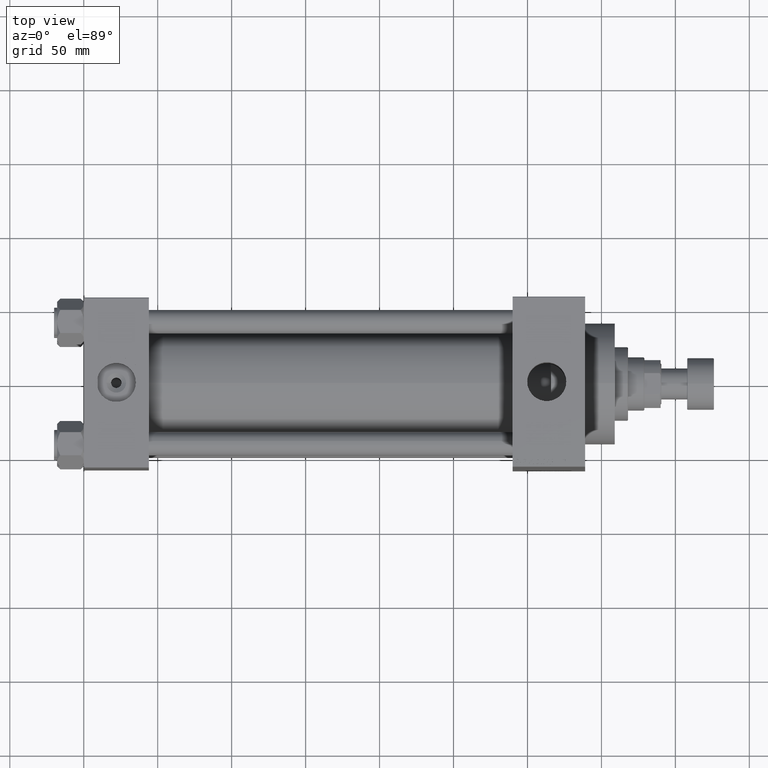
[diagram: clean part render]
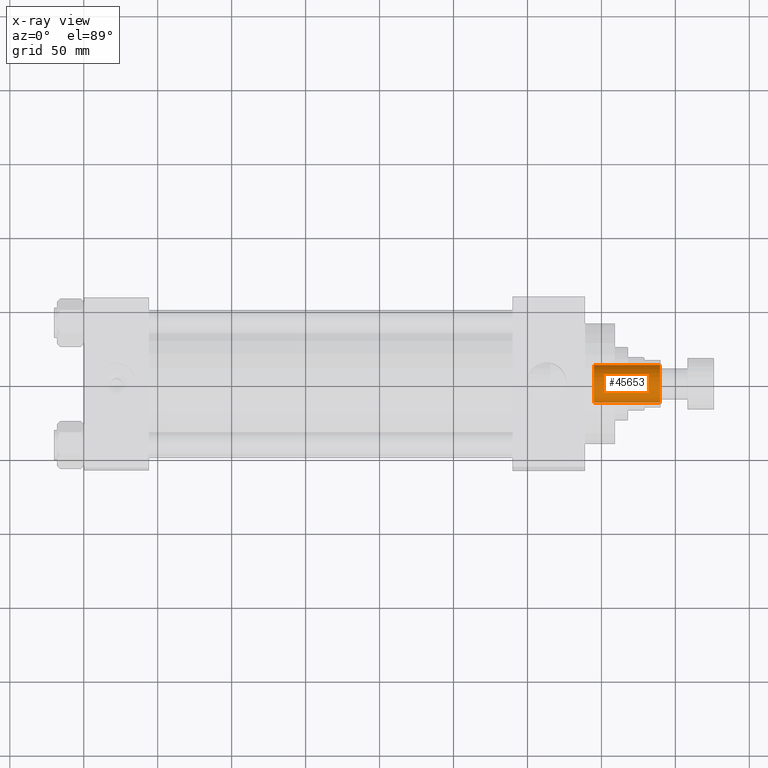
[diagram: x-ray — body ghosted, one internal face saturated and labeled with its STEP entity id]
A machine part, top view, then the same camera in x-ray: the body is ghosted and one INTERNAL B-rep face — a face not visible from any outside direction — is saturated and labeled: STEP entity #45653.
In plain terms, the highlighted cylindrical surface (edge-blend (fillet) strip) has radius 12.75 mm, axis along (1, 0, 0).
Its self-contained STEP definition (entity closure, byte-faithful):
#2239 = DIRECTION ( 'NONE',  ( 1.000000000000000000, 0.000000000000000000, 0.000000000000000000 ) ) ;
#2475 = DIRECTION ( 'NONE',  ( 0.000000000000000000, 0.000000000000000000, 1.000000000000000000 ) ) ;
#3776 = VERTEX_POINT ( 'NONE', #9639 ) ;
#4056 = CIRCLE ( 'NONE', #38402, 12.74999999999998934 ) ;
#7150 = LINE ( 'NONE', #25726, #47699 ) ;
#8098 = CARTESIAN_POINT ( 'NONE',  ( 0.000000000000000000, 0.000000000000000000, 346.0000000000000000 ) ) ;
#9639 = CARTESIAN_POINT ( 'NONE',  ( 12.74999999999999112, 0.000000000000000000, 345.6999999999999318 ) ) ;
#12324 = CARTESIAN_POINT ( 'NONE',  ( 0.000000000000000000, 0.000000000000000000, 301.0000000000000000 ) ) ;
#13476 = CARTESIAN_POINT ( 'NONE',  ( -12.74999999999998934, 1.561424668912873928E-15, 301.0000000000000000 ) ) ;
#15205 = FACE_OUTER_BOUND ( 'NONE', #25578, .T. ) ;
#15416 = ORIENTED_EDGE ( 'NONE', *, *, #19491, .F. ) ;
#17403 = VECTOR ( 'NONE', #31807, 1000.000000000000000 ) ;
#19491 = EDGE_CURVE ( 'NONE', #21349, #3776, #7150, .T. ) ;
#19744 = CIRCLE ( 'NONE', #47828, 12.74999999999999112 ) ;
#19820 = DIRECTION ( 'NONE',  ( -0.000000000000000000, -0.000000000000000000, 1.000000000000000000 ) ) ;
#20802 = CARTESIAN_POINT ( 'NONE',  ( 0.000000000000000000, 0.000000000000000000, 345.6999999999999318 ) ) ;
#20831 = ORIENTED_EDGE ( 'NONE', *, *, #25963, .T. ) ;
#21349 = VERTEX_POINT ( 'NONE', #30493 ) ;
#23020 = DIRECTION ( 'NONE',  ( -0.000000000000000000, -0.000000000000000000, 1.000000000000000000 ) ) ;
#23097 = ORIENTED_EDGE ( 'NONE', *, *, #26562, .T. ) ;
#23918 = EDGE_CURVE ( 'NONE', #25953, #21349, #4056, .T. ) ;
#25569 = CARTESIAN_POINT ( 'NONE',  ( -12.74999999999999112, 1.561424668912874125E-15, 345.6999999999999318 ) ) ;
#25578 = EDGE_LOOP ( 'NONE', ( #31799, #23097, #20831, #15416 ) ) ;
#25726 = CARTESIAN_POINT ( 'NONE',  ( 12.74999999999999112, 0.000000000000000000, 346.0000000000000000 ) ) ;
#25953 = VERTEX_POINT ( 'NONE', #13476 ) ;
#25963 = EDGE_CURVE ( 'NONE', #42033, #3776, #19744, .T. ) ;
#26562 = EDGE_CURVE ( 'NONE', #25953, #42033, #31568, .T. ) ;
#27231 = DIRECTION ( 'NONE',  ( -0.000000000000000000, -0.000000000000000000, 1.000000000000000000 ) ) ;
#27665 = CARTESIAN_POINT ( 'NONE',  ( -12.74999999999999112, 1.561424668912874125E-15, 346.0000000000000000 ) ) ;
#30493 = CARTESIAN_POINT ( 'NONE',  ( 12.74999999999998934, 0.000000000000000000, 301.0000000000000000 ) ) ;
#31568 = LINE ( 'NONE', #27665, #17403 ) ;
#31799 = ORIENTED_EDGE ( 'NONE', *, *, #23918, .F. ) ;
#31807 = DIRECTION ( 'NONE',  ( -0.000000000000000000, -0.000000000000000000, 1.000000000000000000 ) ) ;
#38402 = AXIS2_PLACEMENT_3D ( 'NONE', #12324, #27231, #42132 ) ;
#38629 = CYLINDRICAL_SURFACE ( 'NONE', #42888, 12.74999999999999112 ) ;
#42033 = VERTEX_POINT ( 'NONE', #25569 ) ;
#42132 = DIRECTION ( 'NONE',  ( 1.000000000000000000, 0.000000000000000000, 0.000000000000000000 ) ) ;
#42888 = AXIS2_PLACEMENT_3D ( 'NONE', #8098, #19820, #45495 ) ;
#45495 = DIRECTION ( 'NONE',  ( 1.000000000000000000, 0.000000000000000000, 0.000000000000000000 ) ) ;
#45653 = ADVANCED_FACE ( 'NONE', ( #15205 ), #38629, .F. ) ;
#47699 = VECTOR ( 'NONE', #23020, 1000.000000000000000 ) ;
#47828 = AXIS2_PLACEMENT_3D ( 'NONE', #20802, #2475, #2239 ) ;